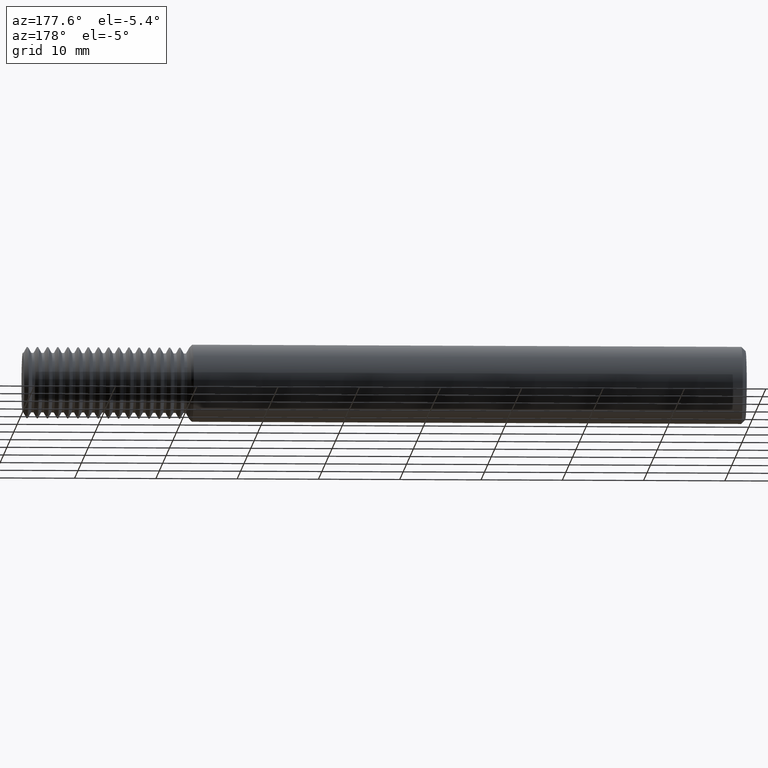
[diagram: clean part render]
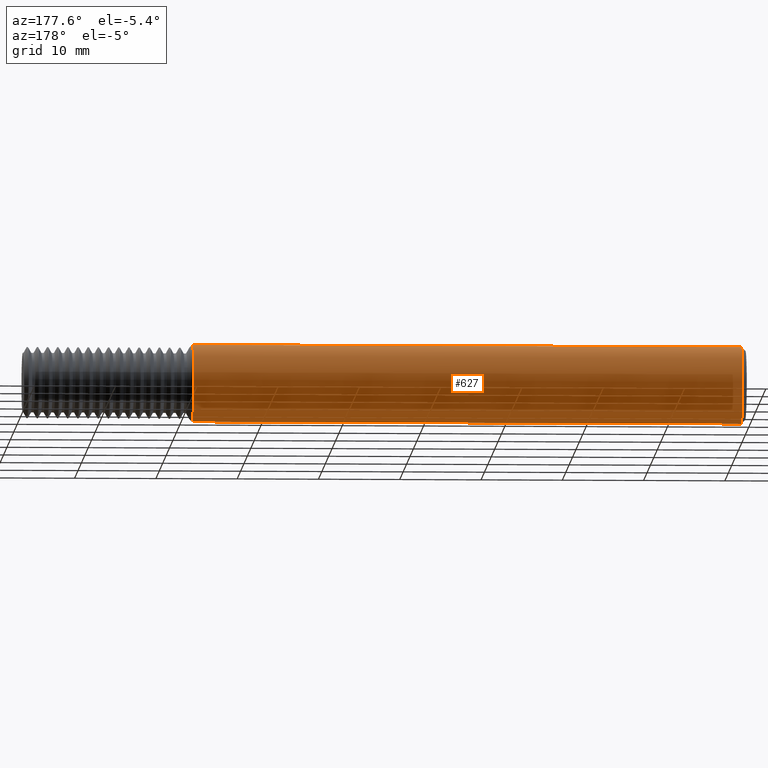
[diagram: same view with one face highlighted and labeled with its STEP entity id]
A machine part, auxiliary view. The second image highlights one B-rep face of the part: STEP entity #627.
In plain terms, the highlighted cylindrical surface (partial cylindrical patch) has radius 4.7587 mm, axis along (-1, -0, -0).
Its self-contained STEP definition (entity closure, byte-faithful):
#97 = CARTESIAN_POINT ( 'NONE',  ( 0.000000000000000000, 0.000000000000000000, 0.1873499999999999888 ) ) ;
#273 = VERTEX_POINT ( 'NONE', #3194 ) ;
#292 = ORIENTED_EDGE ( 'NONE', *, *, #2407, .F. ) ;
#385 = DIRECTION ( 'NONE',  ( -1.000000000000000000, -0.000000000000000000, -0.000000000000000000 ) ) ;
#393 = CYLINDRICAL_SURFACE ( 'NONE', #1793, 0.1873499999999999888 ) ;
#513 = DIRECTION ( 'NONE',  ( 0.000000000000000000, 0.000000000000000000, -1.000000000000000000 ) ) ;
#617 = FACE_OUTER_BOUND ( 'NONE', #3045, .T. ) ;
#626 = CARTESIAN_POINT ( 'NONE',  ( 0.000000000000000000, 2.294375778202566330E-17, -0.1873499999999999888 ) ) ;
#627 = ADVANCED_FACE ( 'NONE', ( #617 ), #393, .T. ) ;
#681 = CARTESIAN_POINT ( 'NONE',  ( 0.000000000000000000, 0.000000000000000000, 0.000000000000000000 ) ) ;
#709 = CARTESIAN_POINT ( 'NONE',  ( 2.679149999999999920, 2.294375778202566330E-17, -0.1873499999999999888 ) ) ;
#781 = CIRCLE ( 'NONE', #2822, 0.1873499999999999888 ) ;
#782 = CARTESIAN_POINT ( 'NONE',  ( 0.02000000000000060757, 0.000000000000000000, 0.000000000000000000 ) ) ;
#884 = ORIENTED_EDGE ( 'NONE', *, *, #1103, .T. ) ;
#1103 = EDGE_CURVE ( 'NONE', #1592, #1589, #2551, .T. ) ;
#1160 = DIRECTION ( 'NONE',  ( 0.000000000000000000, 0.000000000000000000, 1.000000000000000000 ) ) ;
#1231 = CARTESIAN_POINT ( 'NONE',  ( 0.02000000000000060757, 0.000000000000000000, -0.1873499999999999888 ) ) ;
#1512 = ORIENTED_EDGE ( 'NONE', *, *, #2132, .T. ) ;
#1589 = VERTEX_POINT ( 'NONE', #1231 ) ;
#1592 = VERTEX_POINT ( 'NONE', #709 ) ;
#1627 = ORIENTED_EDGE ( 'NONE', *, *, #3495, .T. ) ;
#1632 = CARTESIAN_POINT ( 'NONE',  ( 2.679149999999999920, 0.000000000000000000, 0.1873499999999999888 ) ) ;
#1793 = AXIS2_PLACEMENT_3D ( 'NONE', #681, #2591, #1160 ) ;
#1807 = VECTOR ( 'NONE', #2323, 39.37007874015748143 ) ;
#1861 = DIRECTION ( 'NONE',  ( -1.000000000000000000, -0.000000000000000000, -0.000000000000000000 ) ) ;
#1899 = DIRECTION ( 'NONE',  ( 1.000000000000000000, 0.000000000000000000, 0.000000000000000000 ) ) ;
#2007 = LINE ( 'NONE', #97, #2593 ) ;
#2129 = VERTEX_POINT ( 'NONE', #1632 ) ;
#2132 = EDGE_CURVE ( 'NONE', #1589, #273, #2249, .T. ) ;
#2156 = DIRECTION ( 'NONE',  ( 0.000000000000000000, 0.000000000000000000, 1.000000000000000000 ) ) ;
#2249 = CIRCLE ( 'NONE', #2726, 0.1873499999999999888 ) ;
#2323 = DIRECTION ( 'NONE',  ( -1.000000000000000000, -0.000000000000000000, -0.000000000000000000 ) ) ;
#2407 = EDGE_CURVE ( 'NONE', #2129, #273, #2007, .T. ) ;
#2551 = LINE ( 'NONE', #626, #1807 ) ;
#2591 = DIRECTION ( 'NONE',  ( -1.000000000000000000, -0.000000000000000000, -0.000000000000000000 ) ) ;
#2593 = VECTOR ( 'NONE', #385, 39.37007874015748143 ) ;
#2726 = AXIS2_PLACEMENT_3D ( 'NONE', #782, #1899, #513 ) ;
#2822 = AXIS2_PLACEMENT_3D ( 'NONE', #3010, #1861, #2156 ) ;
#3010 = CARTESIAN_POINT ( 'NONE',  ( 2.679149999999999920, 0.000000000000000000, 0.000000000000000000 ) ) ;
#3045 = EDGE_LOOP ( 'NONE', ( #1627, #884, #1512, #292 ) ) ;
#3194 = CARTESIAN_POINT ( 'NONE',  ( 0.02000000000000060757, 2.294375778202566330E-17, 0.1873499999999999888 ) ) ;
#3495 = EDGE_CURVE ( 'NONE', #2129, #1592, #781, .T. ) ;